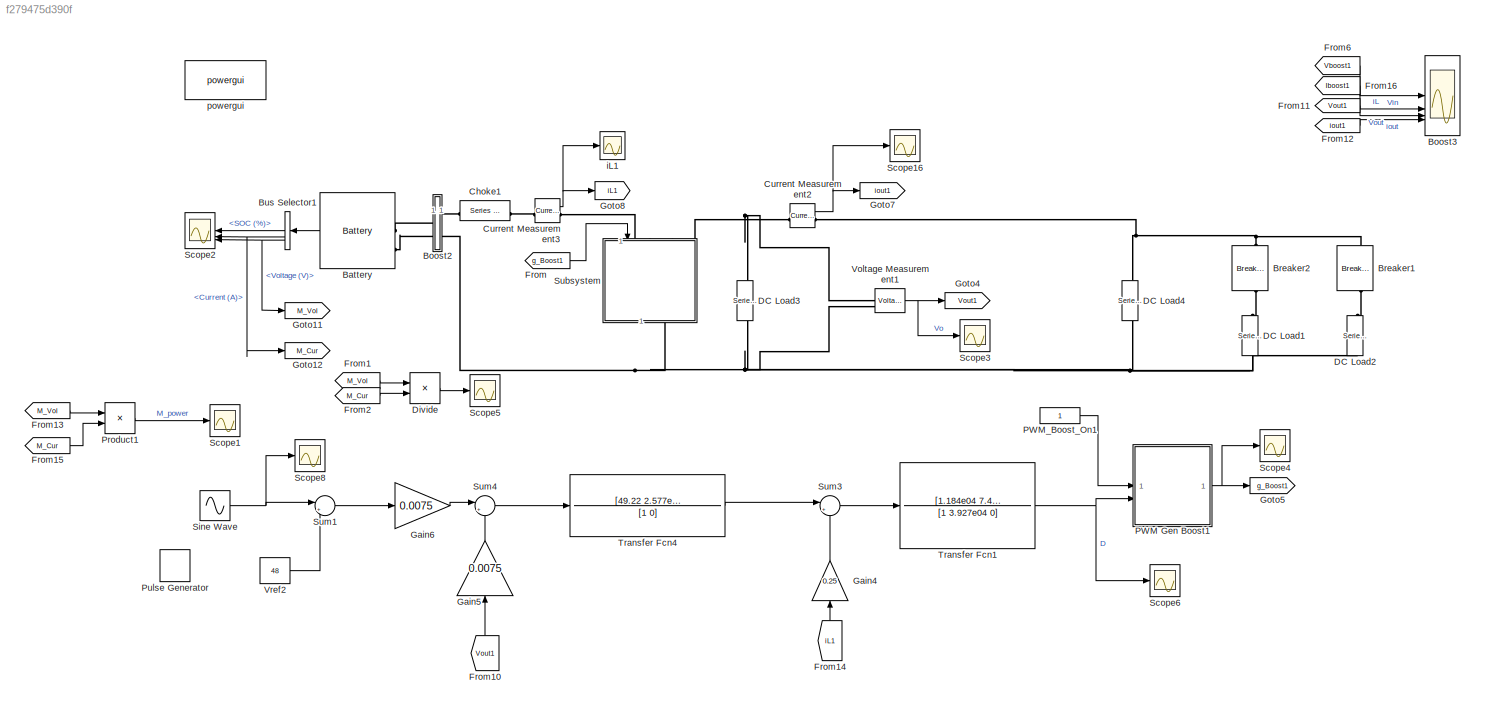
MODEL slx_f279475d390f
KIND model
CONFIG AbsTol = auto
CONFIG EnableMultiTasking = off
CONFIG FixedStep = auto
CONFIG MaxStep = 1e-4
CONFIG MinStep = auto
CONFIG RelTol = 1e-3
CONFIG SampleTimeConstraint = Unconstrained
CONFIG SolverName = ode45
CONFIG StartTime = 0.0
CONFIG StopTime = 0.1
BLOCK [Reference] Battery  REF=spsBatteryLib/Battery
  LibrarySourceBlock = electricdrivelib/Extra Sources/Battery
  SourceBlock = spsBatteryLib/Battery
  SourceType = Battery
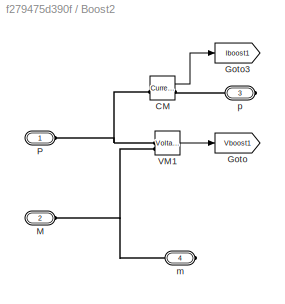
BLOCK [SubSystem] Boost2
BLOCK [Reference] Boost2/CM  REF=spsCurrentMeasurementLib/Current Measurement
  LibrarySourceBlock = sps_lib/Sensors and Measurements/Current Measurement
  SourceBlock = spsCurrentMeasurementLib/Current Measurement
  SourceType = Current Measurement
  UserDataPersistent = on
BLOCK [Goto] Boost2/Goto
  GotoTag = Vboost1
  TagVisibility = global
BLOCK [Goto] Boost2/Goto3
  GotoTag = Iboost1
  TagVisibility = global
BLOCK [PMIOPort] Boost2/M
  Port = 2
  Side = Left
BLOCK [PMIOPort] Boost2/P
  Side = Left
BLOCK [Reference] Boost2/VM1  REF=spsVoltageMeasurementLib/Voltage Measurement
  LibrarySourceBlock = sps_lib/Sensors and Measurements/Voltage Measurement
  SourceBlock = spsVoltageMeasurementLib/Voltage Measurement
  SourceType = Voltage Measurement
  UserDataPersistent = on
BLOCK [PMIOPort] Boost2/m
  Port = 4
  Side = Right
BLOCK [PMIOPort] Boost2/p
  Port = 3
  Side = Right
BLOCK [Scope] Boost3
  Floating = off
  NumInputPorts = 4
  ScopeSpecificationString = Simulink.scopes.TimeScopeBlockCfg('CurrentConfiguration', extmgr.ConfigurationSet(extmgr.Configuration('Core','General UI',true,'FigureColor',[0.156862745098039 0.156862745098039 0.156862745098039]),extmgr.Configuration('Core','Source UI',true),extmgr.Configuration('Sources','WiredSimulink',true,'DataLoggingVariableName','ScopeData1','DataLoggingSaveFormat','StructureWithTime','DataLoggingDecimati...<+4103ch>
BLOCK [Reference] Breaker1  REF=spsBreakerLib/Breaker
  LibrarySourceBlock = sps_lib/Power Grid Elements/Breaker
  NameLocation = left
  SourceBlock = spsBreakerLib/Breaker
  SourceType = Breaker
BLOCK [Reference] Breaker2  REF=spsBreakerLib/Breaker
  LibrarySourceBlock = sps_lib/Power Grid Elements/Breaker
  NameLocation = left
  SourceBlock = spsBreakerLib/Breaker
  SourceType = Breaker
BLOCK [BusSelector] Bus Selector1
  OutputSignals = SOC (%),Current (A),Voltage (V)
BLOCK [Reference] Choke1  REF=spsSeriesRLCBranchLib/Series RLC Branch
  LibrarySourceBlock = sps_lib/Passives/Series RLC Branch
  SourceBlock = spsSeriesRLCBranchLib/Series RLC Branch
  SourceType = Series RLC Branch
BLOCK [Reference] Current Measurement2  REF=spsCurrentMeasurementLib/Current Measurement
  LibrarySourceBlock = sps_lib/Sensors and Measurements/Current Measurement
  SourceBlock = spsCurrentMeasurementLib/Current Measurement
  SourceType = Current Measurement
  UserDataPersistent = on
BLOCK [Reference] Current Measurement3  REF=spsCurrentMeasurementLib/Current Measurement
  LibrarySourceBlock = sps_lib/Sensors and Measurements/Current Measurement
  SourceBlock = spsCurrentMeasurementLib/Current Measurement
  SourceType = Current Measurement
  UserDataPersistent = on
BLOCK [Reference] DC Load1  REF=spsSeriesRLCBranchLib/Series RLC Branch
  LibrarySourceBlock = sps_lib/Passives/Series RLC Branch
  NameLocation = right
  SourceBlock = spsSeriesRLCBranchLib/Series RLC Branch
  SourceType = Series RLC Branch
BLOCK [Reference] DC Load2  REF=spsSeriesRLCBranchLib/Series RLC Branch
  LibrarySourceBlock = sps_lib/Passives/Series RLC Branch
  NameLocation = right
  SourceBlock = spsSeriesRLCBranchLib/Series RLC Branch
  SourceType = Series RLC Branch
BLOCK [Reference] DC Load3  REF=spsSeriesRLCBranchLib/Series RLC Branch
  LibrarySourceBlock = sps_lib/Passives/Series RLC Branch
  NameLocation = right
  SourceBlock = spsSeriesRLCBranchLib/Series RLC Branch
  SourceType = Series RLC Branch
BLOCK [Reference] DC Load4  REF=spsSeriesRLCBranchLib/Series RLC Branch
  LibrarySourceBlock = sps_lib/Passives/Series RLC Branch
  NameLocation = right
  SourceBlock = spsSeriesRLCBranchLib/Series RLC Branch
  SourceType = Series RLC Branch
BLOCK [Product] Divide
  Inputs = */
BLOCK [From] From
  GotoTag = g_Boost1
  TagVisibility = global
BLOCK [From] From1
  GotoTag = M_Vol
  TagVisibility = global
BLOCK [From] From10
  GotoTag = Vout1
  NameLocation = right
  TagVisibility = global
BLOCK [From] From11
  GotoTag = Vout1
  TagVisibility = global
BLOCK [From] From12
  GotoTag = iout1
  TagVisibility = global
BLOCK [From] From13
  GotoTag = M_Vol
  TagVisibility = global
BLOCK [From] From14
  GotoTag = iL1
  NameLocation = right
  TagVisibility = global
BLOCK [From] From15
  GotoTag = M_Cur
  TagVisibility = global
BLOCK [From] From16
  GotoTag = Iboost1
  TagVisibility = global
BLOCK [From] From2
  GotoTag = M_Cur
  TagVisibility = global
BLOCK [From] From6
  GotoTag = Vboost1
  TagVisibility = global
BLOCK [Gain] Gain4
  Gain = 0.25
  NameLocation = right
BLOCK [Gain] Gain5
  Gain = 0.0075
  NameLocation = right
BLOCK [Gain] Gain6
  Gain = 0.0075
BLOCK [Goto] Goto11
  GotoTag = M_Vol
  TagVisibility = global
BLOCK [Goto] Goto12
  GotoTag = M_Cur
  TagVisibility = global
BLOCK [Goto] Goto4
  GotoTag = Vout1
  TagVisibility = global
BLOCK [Goto] Goto5
  GotoTag = g_Boost1
  TagVisibility = global
BLOCK [Goto] Goto7
  GotoTag = iout1
  TagVisibility = global
BLOCK [Goto] Goto8
  GotoTag = iL1
  TagVisibility = global
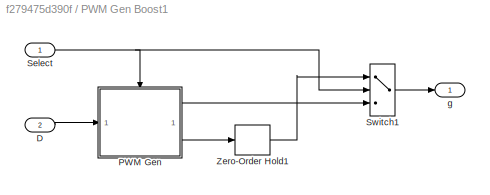
BLOCK [SubSystem] PWM Gen Boost1
BLOCK [Inport] PWM Gen Boost1/D
  Port = 2
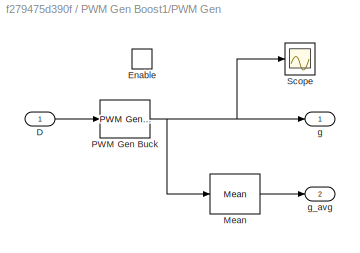
BLOCK [SubSystem] PWM Gen Boost1/PWM Gen
BLOCK [Inport] PWM Gen Boost1/PWM Gen/D
BLOCK [EnablePort] PWM Gen Boost1/PWM Gen/Enable
BLOCK [Reference] PWM Gen Boost1/PWM Gen/Mean  REF=spsMeanLib/Mean
  LibrarySourceBlock = sps_lib/Sensors and Measurements/Mean
  SourceBlock = spsMeanLib/Mean
  SourceType = Mean
BLOCK [Reference] PWM Gen Boost1/PWM Gen/PWM Gen Buck   REF=spsPWMGeneratorDCDCLib/PWM Generator
(DC-DC)
  LibrarySourceBlock = sps_lib/Power Electronics/Power Electronics Control/PWM Generator\n(DC-DC)
  SourceBlock = spsPWMGeneratorDCDCLib/PWM Generator\n(DC-DC)
  SourceType = PWM Generator (DC-DC)
BLOCK [Scope] PWM Gen Boost1/PWM Gen/Scope
  Floating = off
  NumInputPorts = 1
  ScopeSpecificationString = Simulink.scopes.TimeScopeBlockCfg('CurrentConfiguration', extmgr.ConfigurationSet(extmgr.Configuration('Core','General UI',true),extmgr.Configuration('Core','Source UI',true),extmgr.Configuration('Sources','WiredSimulink',true,'DataLoggingVariableName','ScopeData1'),extmgr.Configuration('Visuals','Time Domain',true,'SerializedDisplays',{struct('MinYLimReal','-0.125','MaxYLimReal','1.125','YLabelRe...<+1433ch>
BLOCK [Outport] PWM Gen Boost1/PWM Gen/g
  VectorParamsAs1DForOutWhenUnconnected = off
BLOCK [Outport] PWM Gen Boost1/PWM Gen/g_avg
  Port = 2
  VectorParamsAs1DForOutWhenUnconnected = off
BLOCK [Inport] PWM Gen Boost1/Select
BLOCK [Switch] PWM Gen Boost1/Switch1
  InputSameDT = off
  SaturateOnIntegerOverflow = off
  Threshold = 1.5
BLOCK [ZeroOrderHold] PWM Gen Boost1/Zero-Order Hold1
  SampleTime = 5e-7
BLOCK [Outport] PWM Gen Boost1/g
  VectorParamsAs1DForOutWhenUnconnected = off
BLOCK [Constant] PWM_Boost_On1
BLOCK [Product] Product1
BLOCK [DiscretePulseGenerator] Pulse Generator
  Amplitude = 3
  Period = 1/100
  PulseType = Time based
  PulseWidth = 50
BLOCK [Scope] Scope1
  Floating = off
  NumInputPorts = 1
  ScopeSpecificationString = Simulink.scopes.TimeScopeBlockCfg('CurrentConfiguration', extmgr.ConfigurationSet(extmgr.Configuration('Core','General UI',true),extmgr.Configuration('Core','Source UI',true),extmgr.Configuration('Sources','WiredSimulink',true,'DataLoggingVariableName','ScopeData1'),extmgr.Configuration('Visuals','Time Domain',true,'SerializedDisplays',{struct('MinYLimReal','-0.50871','MaxYLimReal','2.05036','YLab...<+1471ch>
BLOCK [Scope] Scope16
  Floating = off
  NumInputPorts = 1
  ScopeSpecificationString = Simulink.scopes.TimeScopeBlockCfg('CurrentConfiguration', extmgr.ConfigurationSet(extmgr.Configuration('Core','General UI',true),extmgr.Configuration('Core','Source UI',true),extmgr.Configuration('Sources','WiredSimulink',true,'DataLoggingVariableName','ScopeData11'),extmgr.Configuration('Visuals','Time Domain',true,'SerializedDisplays',{struct('MinYLimReal','-20.30635','MaxYLimReal','21.17579','Y...<+1487ch>
BLOCK [Scope] Scope2
  Floating = off
  NumInputPorts = 3
  ScopeSpecificationString = Simulink.scopes.TimeScopeBlockCfg('CurrentConfiguration', extmgr.ConfigurationSet(extmgr.Configuration('Core','General UI',true),extmgr.Configuration('Core','Source UI',true),extmgr.Configuration('Sources','WiredSimulink',true,'DataLoggingSaveFormat','Array','DataLoggingDecimation','1','DataLoggingDecimateData',true,'DataLoggingVariableName','ScopeData15'),extmgr.Configuration('Visuals','Time Doma...<+3054ch>
BLOCK [Scope] Scope3
  Floating = off
  NumInputPorts = 1
  ScopeSpecificationString = Simulink.scopes.TimeScopeBlockCfg('CurrentConfiguration', extmgr.ConfigurationSet(extmgr.Configuration('Core','General UI',true),extmgr.Configuration('Core','Source UI',true),extmgr.Configuration('Sources','WiredSimulink',true,'DataLoggingVariableName','ScopeData2'),extmgr.Configuration('Visuals','Time Domain',true,'SerializedDisplays',{struct('MinYLimReal','-210.45092','MaxYLimReal','259.45111','...<+1557ch>
BLOCK [Scope] Scope4
  Floating = off
  NumInputPorts = 1
  ScopeSpecificationString = Simulink.scopes.TimeScopeBlockCfg('CurrentConfiguration', extmgr.ConfigurationSet(extmgr.Configuration('Core','General UI',true),extmgr.Configuration('Core','Source UI',true),extmgr.Configuration('Sources','WiredSimulink',true,'DataLoggingVariableName','ScopeData18'),extmgr.Configuration('Visuals','Time Domain',true,'SerializedDisplays',{struct('MinYLimReal','-0.125','MaxYLimReal','1.125','YLabelR...<+1435ch>
BLOCK [Scope] Scope5
  Floating = off
  NumInputPorts = 1
  ScopeSpecificationString = Simulink.scopes.TimeScopeBlockCfg('CurrentConfiguration', extmgr.ConfigurationSet(extmgr.Configuration('Core','General UI',true),extmgr.Configuration('Core','Source UI',true),extmgr.Configuration('Sources','WiredSimulink',true,'DataLoggingVariableName','ScopeData1'),extmgr.Configuration('Visuals','Time Domain',true,'SerializedDisplays',{struct('MinYLimReal','-3664010312044173158749569024.00000','M...<+1680ch>
BLOCK [Scope] Scope6
  Floating = off
  NumInputPorts = 1
  ScopeSpecificationString = Simulink.scopes.TimeScopeBlockCfg('CurrentConfiguration', extmgr.ConfigurationSet(extmgr.Configuration('Core','General UI',true),extmgr.Configuration('Core','Source UI',true),extmgr.Configuration('Sources','WiredSimulink',true,'DataLoggingVariableName','ScopeData20'),extmgr.Configuration('Visuals','Time Domain',true,'SerializedDisplays',{struct('MinYLimReal','-402.70723','MaxYLimReal','702.79449',...<+1451ch>
BLOCK [Scope] Scope8
  Floating = off
  NumInputPorts = 1
  ScopeSpecificationString = Simulink.scopes.TimeScopeBlockCfg('CurrentConfiguration', extmgr.ConfigurationSet(extmgr.Configuration('Core','General UI',true),extmgr.Configuration('Core','Source UI',true),extmgr.Configuration('Sources','WiredSimulink',true,'DataLoggingVariableName','ScopeData2'),extmgr.Configuration('Visuals','Time Domain',true,'SerializedDisplays',{struct('MinYLimReal','-20.00000','MaxYLimReal','20.00000','YL...<+1475ch>
BLOCK [Sin] Sine Wave
  Amplitude = 2
  Frequency = 2*pi*100
  SampleTime = 0
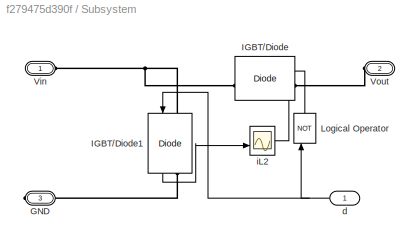
BLOCK [SubSystem] Subsystem
  NameLocation = left
BLOCK [PMIOPort] Subsystem/GND
  NameLocation = top
  Port = 3
  Side = Right
BLOCK [Reference] Subsystem/IGBT//Diode  REF=spsIGBTDiodeLib/IGBT//Diode
  LibrarySourceBlock = sps_lib/Power Electronics/IGBT//Diode
  NameLocation = top
  SourceBlock = spsIGBTDiodeLib/IGBT//Diode
  SourceType = IGBT/Diode
BLOCK [Reference] Subsystem/IGBT//Diode1  REF=spsIGBTDiodeLib/IGBT//Diode
  LibrarySourceBlock = sps_lib/Power Electronics/IGBT//Diode
  NameLocation = left
  SourceBlock = spsIGBTDiodeLib/IGBT//Diode
  SourceType = IGBT/Diode
BLOCK [Logic] Subsystem/Logical Operator
  AllPortsSameDT = off
  NameLocation = right
  Operator = NOT
  OutDataTypeStr = float('double')
BLOCK [PMIOPort] Subsystem/Vin
  Side = Left
BLOCK [PMIOPort] Subsystem/Vout
  Port = 2
  Side = Left
BLOCK [Inport] Subsystem/d
BLOCK [Scope] Subsystem/iL2
  Floating = off
  NumInputPorts = 2
  ScopeSpecificationString = Simulink.scopes.TimeScopeBlockCfg('CurrentConfiguration', extmgr.ConfigurationSet(extmgr.Configuration('Core','General UI',true),extmgr.Configuration('Core','Source UI',true),extmgr.Configuration('Sources','WiredSimulink',true,'DataLoggingVariableName','ScopeData1'),extmgr.Configuration('Visuals','Time Domain',true,'SerializedDisplays',{struct('MinYLimReal','-1.79227','MaxYLimReal','16.129','YLabe...<+1428ch>
BLOCK [Sum] Sum1
  Inputs = |++
  NameLocation = top
BLOCK [Sum] Sum3
  Inputs = |+-
BLOCK [Sum] Sum4
  Inputs = |+-
  NameLocation = top
BLOCK [TransferFcn] Transfer Fcn1
  Denominator = [1 3.927e04 0]
  Numerator = [1.184e04 7.442e07]
BLOCK [TransferFcn] Transfer Fcn4
  Denominator = [1 0]
  Numerator = [49.22 2.577e04]
BLOCK [Reference] Voltage Measurement1  REF=spsVoltageMeasurementLib/Voltage Measurement
  LibrarySourceBlock = sps_lib/Sensors and Measurements/Voltage Measurement
  SourceBlock = spsVoltageMeasurementLib/Voltage Measurement
  SourceType = Voltage Measurement
  UserDataPersistent = on
BLOCK [Constant] Vref2
  Value = 48
BLOCK [Scope] iL1
  Floating = off
  NumInputPorts = 1
  ScopeSpecificationString = Simulink.scopes.TimeScopeBlockCfg('CurrentConfiguration', extmgr.ConfigurationSet(extmgr.Configuration('Core','General UI',true),extmgr.Configuration('Core','Source UI',true),extmgr.Configuration('Sources','WiredSimulink',true,'DataLoggingVariableName','ScopeData24'),extmgr.Configuration('Visuals','Time Domain',true,'SerializedDisplays',{struct('MinYLimReal','-2.48821','MaxYLimReal','16.22041','YL...<+1457ch>
BLOCK [Reference] powergui  REF=sps_lib/powergui
  LibrarySourceBlock = sps_lib/powergui
  Priority = 1
  SourceBlock = sps_lib/powergui
  SourceType = PSB option menu block
LINE Battery:1 -> Bus Selector1:1
LINE Boost2/CM:1 -> Boost2/Goto3:1
LINE Boost2/VM1:1 -> Boost2/Goto:1
LINE Bus Selector1:1 -> Scope2:1
NET Bus Selector1:2 -> Goto12:1, Scope2:2
NET Bus Selector1:3 -> Goto11:1, Scope2:3
NET Current Measurement2:1 -> Goto7:1, Scope16:1
NET Current Measurement3:1 -> Goto8:1, iL1:1
LINE Divide:1 -> Scope5:1
LINE From10:1 -> Gain5:1
LINE From11:1 -> Boost3:3
LINE From12:1 -> Boost3:4
LINE From13:1 -> Product1:1
LINE From14:1 -> Gain4:1
LINE From15:1 -> Product1:2
LINE From16:1 -> Boost3:2
LINE From1:1 -> Divide:1
LINE From2:1 -> Divide:2
LINE From6:1 -> Boost3:1
LINE From:1 -> Subsystem:1
LINE Gain4:1 -> Sum3:2
LINE Gain5:1 -> Sum4:2
LINE Gain6:1 -> Sum4:1
LINE PWM Gen Boost1/D:1 -> PWM Gen Boost1/PWM Gen:1
LINE PWM Gen Boost1/PWM Gen/D:1 -> PWM Gen Boost1/PWM Gen/PWM Gen Buck :1
LINE PWM Gen Boost1/PWM Gen/Mean:1 -> PWM Gen Boost1/PWM Gen/g_avg:1
NET PWM Gen Boost1/PWM Gen/PWM Gen Buck :1 -> PWM Gen Boost1/PWM Gen/Mean:1, PWM Gen Boost1/PWM Gen/Scope:1, PWM Gen Boost1/PWM Gen/g:1
LINE PWM Gen Boost1/PWM Gen:1 -> PWM Gen Boost1/Switch1:3
LINE PWM Gen Boost1/PWM Gen:2 -> PWM Gen Boost1/Zero-Order Hold1:1
NET PWM Gen Boost1/Select:1 -> PWM Gen Boost1/PWM Gen:enable, PWM Gen Boost1/Switch1:2
LINE PWM Gen Boost1/Switch1:1 -> PWM Gen Boost1/g:1
LINE PWM Gen Boost1/Zero-Order Hold1:1 -> PWM Gen Boost1/Switch1:1
NET PWM Gen Boost1:1 -> Goto5:1, Scope4:1
LINE PWM_Boost_On1:1 -> PWM Gen Boost1:1
LINE Product1:1 -> Scope1:1
NET Sine Wave:1 -> Scope8:1, Sum1:1
LINE Subsystem/IGBT//Diode1:1 -> Subsystem/iL2:2
LINE Subsystem/IGBT//Diode:1 -> Subsystem/iL2:1
LINE Subsystem/Logical Operator:1 -> Subsystem/IGBT//Diode:1
NET Subsystem/d:1 -> Subsystem/IGBT//Diode1:1, Subsystem/Logical Operator:1
LINE Sum1:1 -> Gain6:1
LINE Sum3:1 -> Transfer Fcn1:1
LINE Sum4:1 -> Transfer Fcn4:1
NET Transfer Fcn1:1 -> PWM Gen Boost1:2, Scope6:1
LINE Transfer Fcn4:1 -> Sum3:1
NET Voltage Measurement1:1 -> Goto4:1, Scope3:1
LINE Vref2:1 -> Sum1:2
PLINE Battery:LConn1 -- Boost2:LConn1
PLINE Battery:LConn2 -- Boost2:LConn2
PNET net1: Boost2/CM:LConn1 -- Boost2/P:RConn1 -- Boost2/VM1:LConn1
PLINE Boost2/CM:RConn1 -- Boost2/p:RConn1
PNET net2: Boost2/M:RConn1 -- Boost2/VM1:LConn2 -- Boost2/m:RConn1
PLINE Boost2:RConn1 -- Choke1:LConn1
PNET net3: Boost2:RConn2 -- DC Load1:RConn1 -- DC Load2:RConn1 -- DC Load3:RConn1 -- DC Load4:RConn1 -- Subsystem:RConn1 -- Voltage Measurement1:LConn2
PNET net4: Breaker1:LConn1 -- Breaker2:LConn1 -- Current Measurement2:RConn1 -- DC Load4:LConn1
PLINE Breaker1:RConn1 -- DC Load2:LConn1
PLINE Breaker2:RConn1 -- DC Load1:LConn1
PLINE Choke1:RConn1 -- Current Measurement3:LConn1
PNET net5: Current Measurement2:LConn1 -- DC Load3:LConn1 -- Subsystem:LConn2 -- Voltage Measurement1:LConn1
PLINE Current Measurement3:RConn1 -- Subsystem:LConn1
PLINE Subsystem/GND:RConn1 -- Subsystem/IGBT//Diode1:RConn1
PNET net6: Subsystem/IGBT//Diode1:LConn1 -- Subsystem/IGBT//Diode:RConn1 -- Subsystem/Vin:RConn1
PLINE Subsystem/IGBT//Diode:LConn1 -- Subsystem/Vout:RConn1
note: NET lines group one-source signal fan-out (src -> all destinations, sorted); 1:1 wires keep LINE; PNET lines group multi-terminal physical nets as a canonical sorted terminal list (undirected conserving connections); 2-terminal nets keep the pairwise PLINE form
